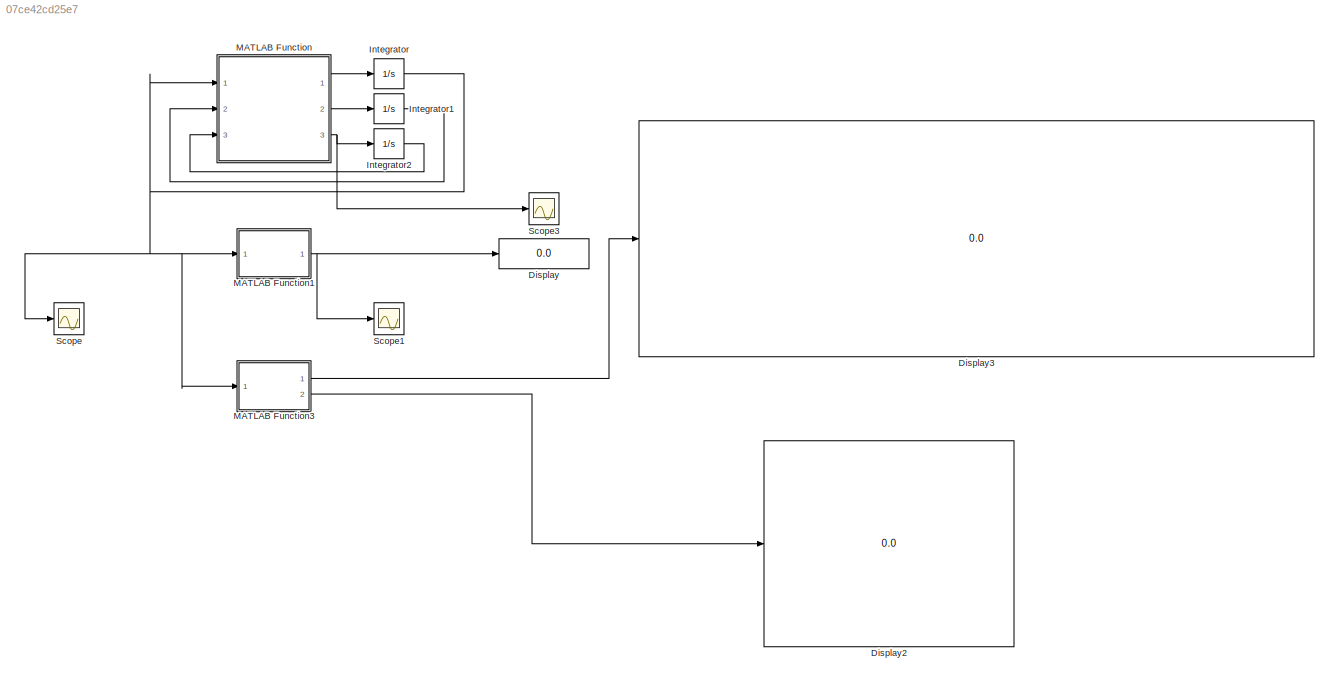
MODEL slx_07ce42cd25e7
KIND model
CONFIG AbsTol = auto
CONFIG EnableMultiTasking = on
CONFIG FixedStep = auto
CONFIG InitFcn = n = 9
CONFIG MaxStep = auto
CONFIG MinStep = auto
CONFIG RelTol = 1e-3
CONFIG SampleTimeConstraint = Unconstrained
CONFIG SolverName = ode45
CONFIG StartTime = 0.0
CONFIG StopTime = 1000
BLOCK [Display] Display
  Decimation = 1
  Ports = [1]
BLOCK [Display] Display2
  Decimation = 1
  Ports = [1]
BLOCK [Display] Display3
  Decimation = 1
  Ports = [1]
BLOCK [Integrator] Integrator
  InitialCondition = zeros(n*n,1)
  Ports = [1, 1]
BLOCK [Integrator] Integrator1
  InitialCondition = ones(n*n,1)
  Ports = [1, 1]
BLOCK [Integrator] Integrator2
  InitialCondition = ones(2*n,1)
  Ports = [1, 1]
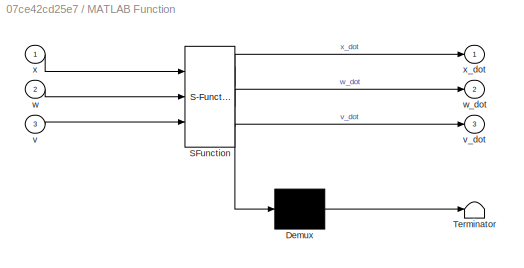
BLOCK [SubSystem] MATLAB Function
  ErrorFcn = Stateflow.Translate.translate
  PermitHierarchicalResolution = ExplicitOnly
  Ports = [3, 3]
  RequestExecContextInheritance = off
  SFBlockType = MATLAB Function
  TreatAsAtomicUnit = on
BLOCK [Demux] MATLAB Function/ Demux 
  Outputs = 1
  Ports = [1, 1]
BLOCK [S-Function] MATLAB Function/ SFunction 
  EnableBusSupport = on
  FunctionName = sf_sfun
  PortCounts = [3 4]
  Ports = [3, 4]
  SFcnIsStateOwnerBlock = off
  SFunctionDeploymentMode = off
  Tag = Stateflow S-Function 2
BLOCK [Terminator] MATLAB Function/ Terminator 
BLOCK [Inport] MATLAB Function/v
  Port = 3
BLOCK [Outport] MATLAB Function/v_dot
  Port = 3
BLOCK [Inport] MATLAB Function/w
  Port = 2
BLOCK [Outport] MATLAB Function/w_dot
  Port = 2
BLOCK [Inport] MATLAB Function/x
BLOCK [Outport] MATLAB Function/x_dot
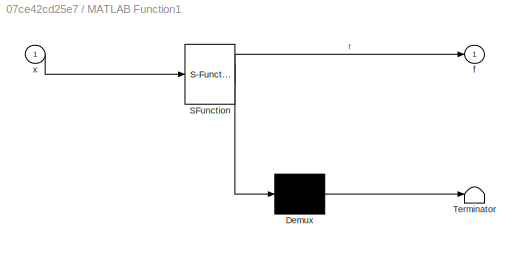
BLOCK [SubSystem] MATLAB Function1
  ErrorFcn = Stateflow.Translate.translate
  PermitHierarchicalResolution = ExplicitOnly
  Ports = [1, 1]
  RequestExecContextInheritance = off
  SFBlockType = MATLAB Function
  TreatAsAtomicUnit = on
BLOCK [Demux] MATLAB Function1/ Demux 
  Outputs = 1
  Ports = [1, 1]
BLOCK [S-Function] MATLAB Function1/ SFunction 
  EnableBusSupport = on
  FunctionName = sf_sfun
  PortCounts = [1 2]
  Ports = [1, 2]
  SFcnIsStateOwnerBlock = off
  SFunctionDeploymentMode = off
  Tag = Stateflow S-Function 1
BLOCK [Terminator] MATLAB Function1/ Terminator 
BLOCK [Outport] MATLAB Function1/f
BLOCK [Inport] MATLAB Function1/x
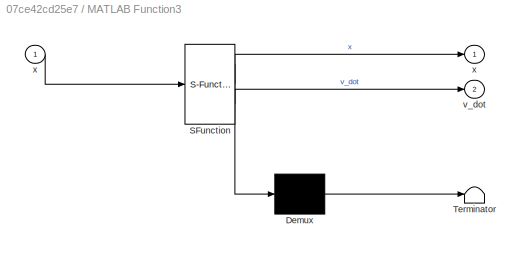
BLOCK [SubSystem] MATLAB Function3
  ErrorFcn = Stateflow.Translate.translate
  PermitHierarchicalResolution = ExplicitOnly
  Ports = [1, 2]
  RequestExecContextInheritance = off
  SFBlockType = MATLAB Function
  TreatAsAtomicUnit = on
BLOCK [Demux] MATLAB Function3/ Demux 
  Outputs = 1
  Ports = [1, 1]
BLOCK [S-Function] MATLAB Function3/ SFunction 
  EnableBusSupport = on
  FunctionName = sf_sfun
  PortCounts = [1 3]
  Ports = [1, 3]
  SFcnIsStateOwnerBlock = off
  SFunctionDeploymentMode = off
  Tag = Stateflow S-Function 4
BLOCK [Terminator] MATLAB Function3/ Terminator 
BLOCK [Outport] MATLAB Function3/v_dot
  Port = 2
BLOCK [Outport] MATLAB Function3/x
BLOCK [Inport] MATLAB Function3/x 
BLOCK [Scope] Scope
  Floating = off
  NumInputPorts = 1
  Ports = [1]
  ScopeSpecificationString = Simulink.scopes.TimeScopeBlockCfg('CurrentConfiguration', extmgr.ConfigurationSet(extmgr.Configuration('Core','General UI',true),extmgr.Configuration('Core','Source UI',true),extmgr.Configuration('Sources','WiredSimulink',true),extmgr.Configuration('Visuals','Time Domain',true,'SerializedDisplays',{struct('MinYLimReal','-0.82668','MaxYLimReal','1.63909','YLabelReal','','MinYLimMag','0.00000','MaxY...<+2662ch>
BLOCK [Scope] Scope1
  Floating = off
  NumInputPorts = 1
  Ports = [1]
  ScopeSpecificationString = Simulink.scopes.TimeScopeBlockCfg('CurrentConfiguration', extmgr.ConfigurationSet(extmgr.Configuration('Core','General UI',true),extmgr.Configuration('Core','Source UI',true),extmgr.Configuration('Sources','WiredSimulink',true,'DataLoggingVariableName','ScopeData1'),extmgr.Configuration('Visuals','Time Domain',true,'SerializedDisplays',{struct('MinYLimReal','-4.75155','MaxYLimReal','50.52795','YLa...<+1455ch>
BLOCK [Scope] Scope3
  Floating = off
  NumInputPorts = 1
  Ports = [1]
  ScopeSpecificationString = Simulink.scopes.TimeScopeBlockCfg('CurrentConfiguration', extmgr.ConfigurationSet(extmgr.Configuration('Core','General UI',true),extmgr.Configuration('Core','Source UI',true),extmgr.Configuration('Sources','WiredSimulink',true,'DataLoggingVariableName','ScopeData3'),extmgr.Configuration('Visuals','Time Domain',true,'SerializedDisplays',{struct('MinYLimReal','-4.00582','MaxYLimReal','3.32395','YLab...<+1772ch>
LINE Integrator1:1 -> MATLAB Function:2
LINE Integrator2:1 -> MATLAB Function:3
NET Integrator:1 -> MATLAB Function1:1, MATLAB Function3:1, MATLAB Function:1, Scope:1
NET MATLAB Function1:1 -> Display:1, Scope1:1
LINE MATLAB Function3:1 -> Display3:1
LINE MATLAB Function3:2 -> Display2:1
LINE MATLAB Function:1 -> Integrator:1
LINE MATLAB Function:2 -> Integrator1:1
NET MATLAB Function:3 -> Integrator2:1, Scope3:1
note: NET lines group one-source signal fan-out (src -> all destinations, sorted); 1:1 wires keep LINE
CHART MATLAB Function1 states=1 transitions=1
  STATE_LABEL 'eML_blk_kernel()'
  STATE_LABEL 'SCRIPT:\nfunction f = fcn(x)\n% n=3;\n% p = [0.7 0.1 0.2; 0.2 0.6 0.45; 0.1 0.9 0.8];\n% u = [1;2;3];\n\n% n=5;\n% p = [0.6 0.5 0.8 0.7 0.4; 0.9 0.5 0.7 0.8 0.4; 0.8 0.9 0.4 0.5 0.8; 0.8 0.9 0.8 0.6 0.4; 0.7 0.4 0.5 0.6 0.7];\n% u = [1 3 5 2 4];\n\n% n=7;\n% p = [0.0461713906311539,0.438744359656398,0.646313010111265,0.118997681558377,0.255095115459269,0.149294005559057,0.349983765984809;0.0971317812358475,0...<+3608ch>'
CHART MATLAB Function states=1 transitions=1
  STATE_LABEL 'eML_blk_kernel()'
  STATE_LABEL 'SCRIPT:\nfunction [x_dot, w_dot, v_dot] = fcn(x,w,v)\n% n=3;\n% p = [0.7 0.1 0.2; 0.2 0.6 0.45; 0.1 0.9 0.8];\n% u = [1;2;3];\n\n% n=5;\n% p = [0.6 0.5 0.8 0.7 0.4; 0.9 0.5 0.7 0.8 0.4; 0.8 0.9 0.4 0.5 0.8; 0.8 0.9 0.8 0.6 0.4; 0.7 0.4 0.5 0.6 0.7];\n% u = [1 3 5 2 4];\n\n% n=7;\n% p = [0.0461713906311539,0.438744359656398,0.646313010111265,0.118997681558377,0.255095115459269,0.149294005559057,0.349983765984...<+3608ch>'
CHART MATLAB Function3 states=1 transitions=1
  STATE_LABEL 'eML_blk_kernel()'
  STATE_LABEL 'SCRIPT:\nfunction [x,v_dot]= fcn(x)\nn=9;\nfor i=1:1:n*n\n   if x(i)>=0.5\n       x(i) = 1;\n   else\n       x(i) = 0;\n   end\nend\nv_dot = (-1)*ones(2*n,1);\nfor i=1:1:n\n    for j=1:1:n\n        v_dot(i) = v_dot(i)+x(n*(i-1)+j);\n        v_dot(n+i) = v_dot(n+i)+x(n*(j-1)+i);\n    end\nend'
CHART  states=0 transitions=0
CHART  states=0 transitions=0
CHART  states=0 transitions=0
